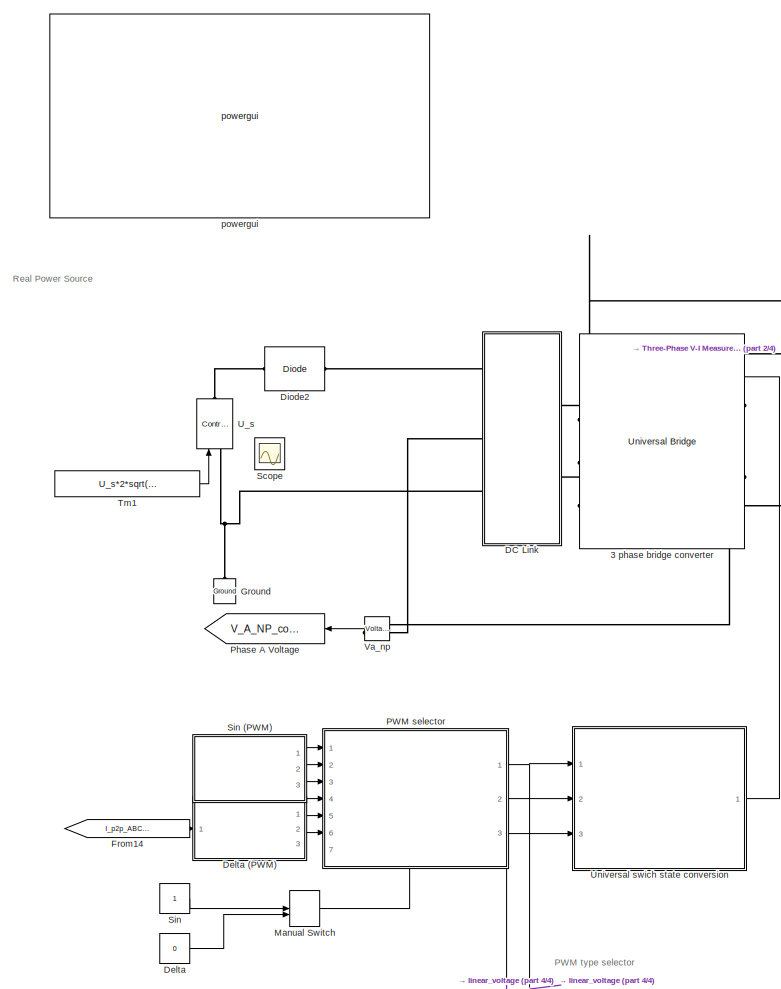
[diagram: root canvas - part 1/4, left side, full height]
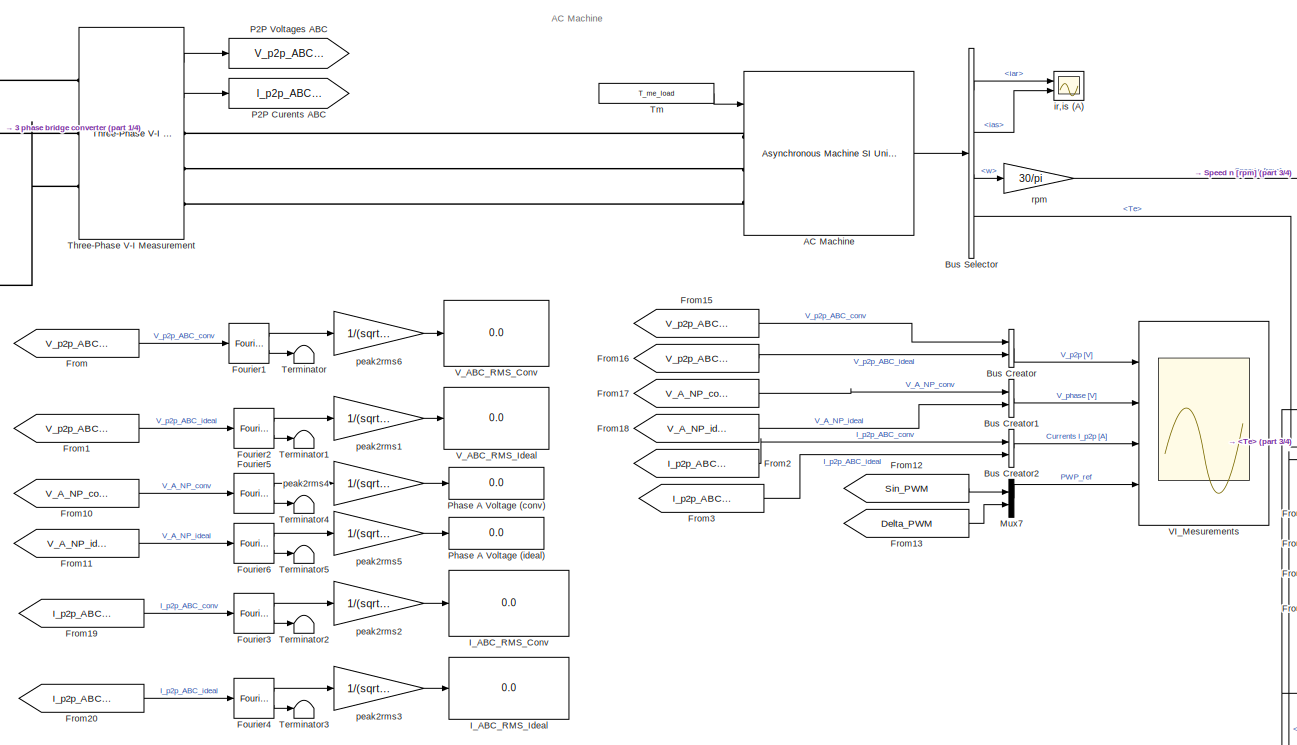
[diagram: root canvas - part 2/4, central region]
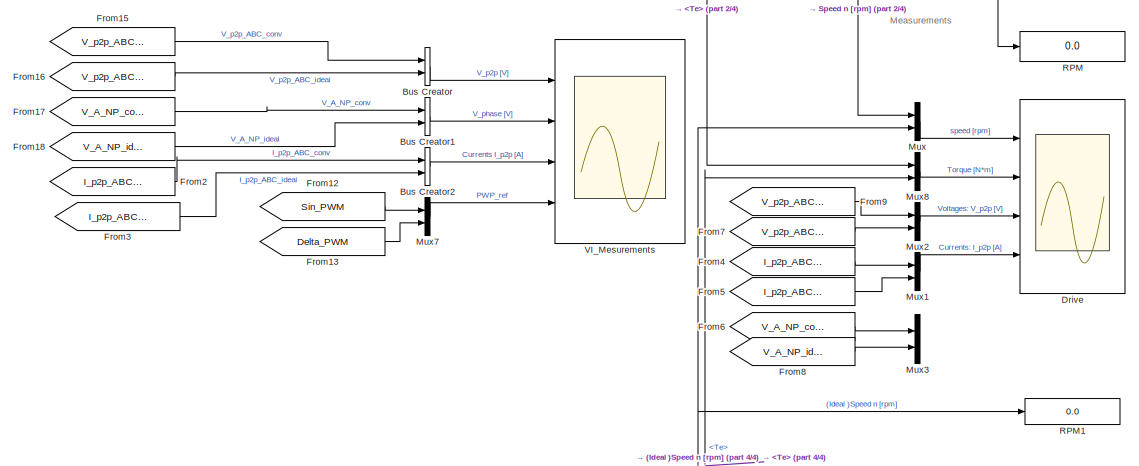
[diagram: root canvas - part 3/4, middle right region]
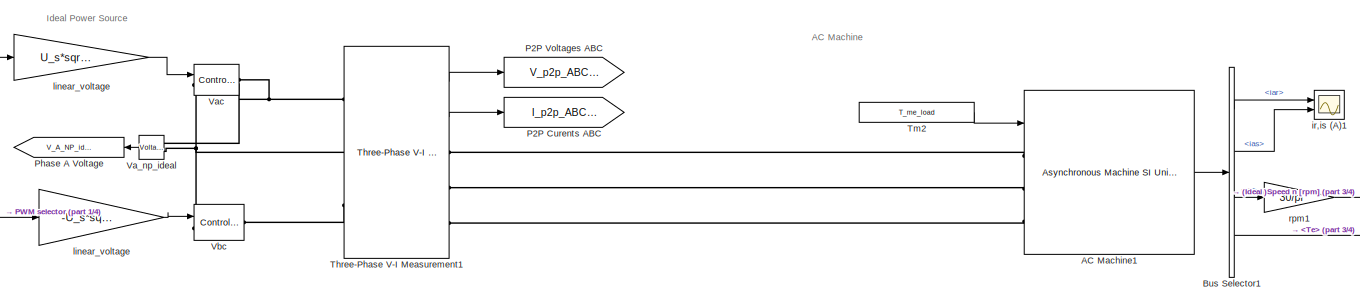
[diagram: root canvas - part 4/4, bottom center region]
MODEL slx_01f4bf0b1620
KIND model
CONFIG AbsTol = auto
CONFIG EnableMultiTasking = on
CONFIG FixedStep = 1e-6
CONFIG MaxStep = 1e-5
CONFIG MinStep = auto
CONFIG RelTol = 1e-5
CONFIG SampleTimeConstraint = Unconstrained
CONFIG SolverName = FixedStepAuto
CONFIG StartTime = 0.0
CONFIG StopTime = 3
BLOCK [Reference] 3 phase bridge converter  REF=spsUniversalBridgeLib/Universal Bridge
  NameLocation = top
  Ports = [1, 0, 0, 0, 0, 3, 2]
  SourceBlock = spsUniversalBridgeLib/Universal Bridge
  SourceProductBaseCode = PS
  SourceType = Universal Bridge
BLOCK [Reference] AC Machine  REF=spsAsynchronousMachineSIUnitsLib/Asynchronous Machine
SI Units
  AttributesFormatString = \n
  Ports = [1, 1, 0, 0, 0, 3]
  SourceBlock = spsAsynchronousMachineSIUnitsLib/Asynchronous Machine\nSI Units
  SourceProductBaseCode = PS
  SourceType = Asynchronous Machine
BLOCK [Reference] AC Machine1  REF=spsAsynchronousMachineSIUnitsLib/Asynchronous Machine
SI Units
  AttributesFormatString = \n
  Ports = [1, 1, 0, 0, 0, 3]
  SourceBlock = spsAsynchronousMachineSIUnitsLib/Asynchronous Machine\nSI Units
  SourceProductBaseCode = PS
  SourceType = Asynchronous Machine
BLOCK [BusCreator] Bus Creator
  DisplayOption = bar
  InheritFromInputs = on
  Inputs = 2
  Ports = [2, 1]
BLOCK [BusCreator] Bus Creator1
  DisplayOption = bar
  InheritFromInputs = on
  Inputs = 2
  Ports = [2, 1]
BLOCK [BusCreator] Bus Creator2
  DisplayOption = bar
  InheritFromInputs = on
  Inputs = 2
  Ports = [2, 1]
BLOCK [BusSelector] Bus Selector
  OutputSignals = iar,ias,w,Te
  Ports = [1, 4]
BLOCK [BusSelector] Bus Selector1
  OutputSignals = iar,ias,w,Te
  Ports = [1, 4]
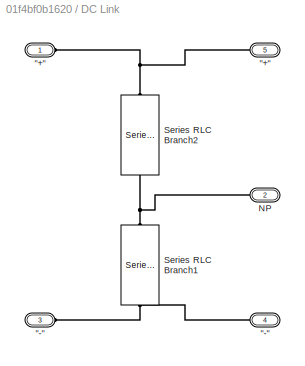
BLOCK [SubSystem] DC Link
  Ports = [0, 0, 0, 0, 0, 3, 2]
  RequestExecContextInheritance = off
BLOCK [PMIOPort] DC Link/"+"
  Side = Left
BLOCK [PMIOPort] DC Link/"+" 
  Port = 5
  Side = Right
BLOCK [PMIOPort] DC Link/"-"
  NameLocation = top
  Port = 3
  Side = Left
BLOCK [PMIOPort] DC Link/"-" 
  Port = 4
  Side = Right
BLOCK [PMIOPort] DC Link/NP
  Port = 2
  Side = Left
BLOCK [Reference] DC Link/Series RLC Branch1  REF=spsSeriesRLCBranchLib/Series RLC Branch
  NameLocation = left
  Ports = [0, 0, 0, 0, 0, 1, 1]
  SourceBlock = spsSeriesRLCBranchLib/Series RLC Branch
  SourceProductBaseCode = PS
  SourceType = Series RLC Branch
BLOCK [Reference] DC Link/Series RLC Branch2  REF=spsSeriesRLCBranchLib/Series RLC Branch
  NameLocation = left
  Ports = [0, 0, 0, 0, 0, 1, 1]
  SourceBlock = spsSeriesRLCBranchLib/Series RLC Branch
  SourceProductBaseCode = PS
  SourceType = Series RLC Branch
BLOCK [Constant] Delta
  Value = 0
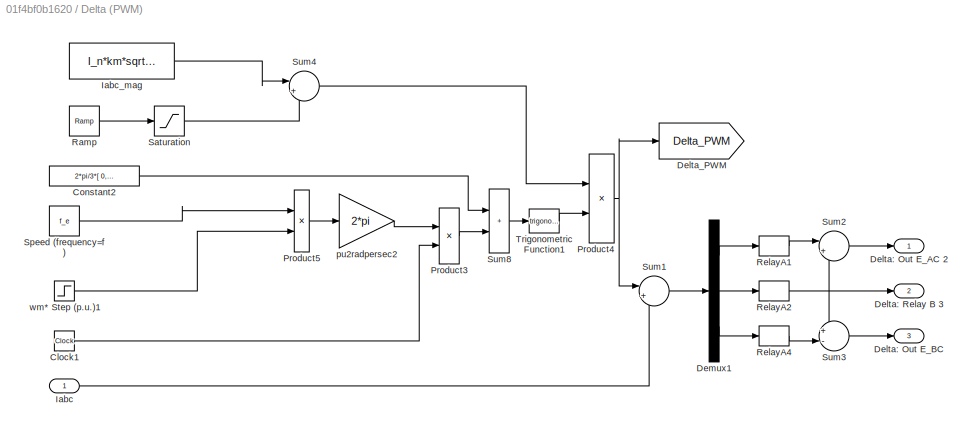
BLOCK [SubSystem] Delta (PWM) 
  Ports = [1, 3]
  RequestExecContextInheritance = off
BLOCK [Clock] Delta (PWM) /Clock1
  NameLocation = top
BLOCK [Constant] Delta (PWM) /Constant2
  NameLocation = top
  Value = 2*pi/3*[ 0,-1,1 ]
BLOCK [Outport] Delta (PWM) /Delta: Out E_AC 2
  VectorParamsAs1DForOutWhenUnconnected = off
BLOCK [Outport] Delta (PWM) /Delta: Out E_BC
  Port = 3
  VectorParamsAs1DForOutWhenUnconnected = off
BLOCK [Outport] Delta (PWM) /Delta: Relay B 3
  Port = 2
  VectorParamsAs1DForOutWhenUnconnected = off
BLOCK [Goto] Delta (PWM) /Delta_PWM
  GotoTag = Delta_PWM
  TagVisibility = global
BLOCK [Demux] Delta (PWM) /Demux1
  DisplayOption = none
  NameLocation = top
  Outputs = 3
  Ports = [1, 3]
BLOCK [Inport] Delta (PWM) /Iabc 
BLOCK [Constant] Delta (PWM) /Iabc_mag
  Value = I_n*km*sqrt(2)
BLOCK [Product] Delta (PWM) /Product3
  InputSameDT = on
  OutDataTypeStr = Inherit: Same as first input
  Ports = [2, 1]
  SaturateOnIntegerOverflow = on
BLOCK [Product] Delta (PWM) /Product4
  InputSameDT = on
  OutDataTypeStr = Inherit: Same as first input
  Ports = [2, 1]
  SaturateOnIntegerOverflow = on
BLOCK [Product] Delta (PWM) /Product5
  InputSameDT = on
  OutDataTypeStr = Inherit: Same as first input
  Ports = [2, 1]
  SaturateOnIntegerOverflow = on
BLOCK [Reference] Delta (PWM) /Ramp  REF=simulink/Sources/Ramp
  Ports = [0, 1]
  SourceBlock = simulink/Sources/Ramp
  SourceProductBaseCode = SL
  SourceType = Ramp
BLOCK [Relay] Delta (PWM) /RelayA1
  OffSwitchValue = -0.1
  OnSwitchValue = 0.1
BLOCK [Relay] Delta (PWM) /RelayA2
  OffSwitchValue = -0.1
  OnSwitchValue = 0.1
BLOCK [Relay] Delta (PWM) /RelayA4
  OffSwitchValue = -0.1
  OnSwitchValue = 0.1
BLOCK [Saturate] Delta (PWM) /Saturation
  LowerLimit = 0
  UpperLimit = T_me_load/T_e_rated*I_n*sqrt(2)
BLOCK [Constant] Delta (PWM) /Speed (frequency=f)
  Value = f_e
BLOCK [Sum] Delta (PWM) /Sum1
  InputSameDT = on
  Inputs = |+-
  OutDataTypeStr = Inherit: Same as first input
  Ports = [2, 1]
  SaturateOnIntegerOverflow = on
BLOCK [Sum] Delta (PWM) /Sum2
  InputSameDT = on
  Inputs = |+-
  OutDataTypeStr = Inherit: Same as first input
  Ports = [2, 1]
  SaturateOnIntegerOverflow = on
BLOCK [Sum] Delta (PWM) /Sum3
  InputSameDT = on
  Inputs = +-|
  OutDataTypeStr = Inherit: Same as first input
  Ports = [2, 1]
  SaturateOnIntegerOverflow = on
BLOCK [Sum] Delta (PWM) /Sum4
  InputSameDT = on
  Inputs = |+-
  OutDataTypeStr = Inherit: Same as first input
  Ports = [2, 1]
  SaturateOnIntegerOverflow = on
BLOCK [Sum] Delta (PWM) /Sum8
  IconShape = rectangular
  InputSameDT = on
  NameLocation = top
  OutDataTypeStr = Inherit: Same as first input
  Ports = [2, 1]
  SaturateOnIntegerOverflow = on
BLOCK [Trigonometry] Delta (PWM) /Trigonometric Function1
  Ports = [1, 1]
BLOCK [Gain] Delta (PWM) /pu2radpersec2
  Gain = 2*pi
  OutDataTypeStr = Inherit: Same as input
  ParamDataTypeStr = Inherit: Same as input
  SaturateOnIntegerOverflow = on
BLOCK [Step] Delta (PWM) /wm* Step (p.u.)1
  After = w_ref
  NameLocation = left
  SampleTime = 0
  Time = 0
BLOCK [Reference] Diode2  REF=spsDiodeLib/Diode
  Ports = [0, 0, 0, 0, 0, 1, 1]
  SourceBlock = spsDiodeLib/Diode
  SourceProductBaseCode = PS
  SourceType = Diode
BLOCK [Scope] Drive
  Floating = off
  NameLocation = top
  NumInputPorts = 4
  Ports = [4]
  ScopeSpecificationString = Simulink.scopes.TimeScopeBlockCfg('CurrentConfiguration', extmgr.ConfigurationSet(extmgr.Configuration('Core','General UI',true,'FigureColor',[1 1 1]),extmgr.Configuration('Core','Source UI',true),extmgr.Configuration('Sources','WiredSimulink',true,'DataLoggingVariableName','ScopeData1','DataLoggingSaveFormat','Array','DataLoggingDecimation','1','DataLoggingDecimateData',true),extmgr.Configuration...<+7477ch>
BLOCK [Reference] Fourier1  REF=spsFourierLib/Fourier
  Ports = [1, 2]
  SourceBlock = spsFourierLib/Fourier
  SourceProductBaseCode = PS
  SourceType = Fourier
BLOCK [Reference] Fourier2  REF=spsFourierLib/Fourier
  Ports = [1, 2]
  SourceBlock = spsFourierLib/Fourier
  SourceProductBaseCode = PS
  SourceType = Fourier
BLOCK [Reference] Fourier3  REF=spsFourierLib/Fourier
  Ports = [1, 2]
  SourceBlock = spsFourierLib/Fourier
  SourceProductBaseCode = PS
  SourceType = Fourier
BLOCK [Reference] Fourier4  REF=spsFourierLib/Fourier
  Ports = [1, 2]
  SourceBlock = spsFourierLib/Fourier
  SourceProductBaseCode = PS
  SourceType = Fourier
BLOCK [Reference] Fourier5  REF=spsFourierLib/Fourier
  Ports = [1, 2]
  SourceBlock = spsFourierLib/Fourier
  SourceProductBaseCode = PS
  SourceType = Fourier
BLOCK [Reference] Fourier6  REF=spsFourierLib/Fourier
  Ports = [1, 2]
  SourceBlock = spsFourierLib/Fourier
  SourceProductBaseCode = PS
  SourceType = Fourier
BLOCK [From] From
  GotoTag = V_p2p_ABC_conv
BLOCK [From] From1
  GotoTag = V_p2p_ABC_ideal
BLOCK [From] From10
  GotoTag = V_A_NP_conv
BLOCK [From] From11
  GotoTag = V_A_NP_ideal
BLOCK [From] From12
  GotoTag = Sin_PWM
  TagVisibility = global
BLOCK [From] From13
  GotoTag = Delta_PWM
  TagVisibility = global
BLOCK [From] From14
  GotoTag = I_p2p_ABC_conv
BLOCK [From] From15
  GotoTag = V_p2p_ABC_conv
BLOCK [From] From16
  GotoTag = V_p2p_ABC_ideal
BLOCK [From] From17
  GotoTag = V_A_NP_conv
BLOCK [From] From18
  GotoTag = V_A_NP_ideal
BLOCK [From] From19
  GotoTag = I_p2p_ABC_conv
BLOCK [From] From2
  GotoTag = I_p2p_ABC_conv
BLOCK [From] From20
  GotoTag = I_p2p_ABC_ideal
BLOCK [From] From3
  GotoTag = I_p2p_ABC_ideal
BLOCK [From] From4
  GotoTag = I_p2p_ABC_ideal
BLOCK [From] From5
  GotoTag = I_p2p_ABC_conv
BLOCK [From] From6
  GotoTag = V_A_NP_conv
BLOCK [From] From7
  GotoTag = V_p2p_ABC_conv
BLOCK [From] From8
  GotoTag = V_A_NP_ideal
BLOCK [From] From9
  GotoTag = V_p2p_ABC_ideal
BLOCK [Reference] Ground  REF=spsGroundLib/Ground
  NameLocation = right
  Ports = [0, 0, 0, 0, 0, 1]
  SourceBlock = spsGroundLib/Ground
  SourceProductBaseCode = PS
  SourceType = Ground
BLOCK [Display] I_ABC_RMS_Conv
  Decimation = 100
  Ports = [1]
BLOCK [Display] I_ABC_RMS_Ideal
  Decimation = 100
  Ports = [1]
BLOCK [ManualSwitch] Manual Switch
BLOCK [Mux] Mux
  DisplayOption = bar
  Inputs = 2
  Ports = [2, 1]
BLOCK [Mux] Mux1
  DisplayOption = bar
  Inputs = 2
  Ports = [2, 1]
BLOCK [Mux] Mux2
  DisplayOption = bar
  Inputs = 2
  Ports = [2, 1]
BLOCK [Mux] Mux3
  DisplayOption = bar
  Inputs = 2
  Ports = [2, 1]
BLOCK [Mux] Mux7
  DisplayOption = bar
  Inputs = 2
  Ports = [2, 1]
BLOCK [Mux] Mux8
  DisplayOption = bar
  Inputs = 2
  Ports = [2, 1]
BLOCK [Goto] P2P Curents ABC  
  GotoTag = I_p2p_ABC_ideal
  NameLocation = right
BLOCK [Goto] P2P Curents ABC   
  GotoTag = I_p2p_ABC_conv
  NameLocation = right
BLOCK [Goto] P2P Voltages ABC
  GotoTag = V_p2p_ABC_ideal
  NameLocation = right
BLOCK [Goto] P2P Voltages ABC 
  GotoTag = V_p2p_ABC_conv
  NameLocation = right
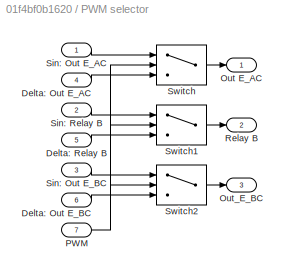
BLOCK [SubSystem] PWM selector
  NameLocation = top
  PortSchema = {"entries":[{"content":{"sides":[{"content":{"connectorIds":["In1","In2","In3","In4","In5","In6"]},"type":"ConnectorPlacement.EquallySpacedRectSide","uuid":"d8825297-29c5-47ea-8460-276057c08024"},{"content":{"connectorIds":["Out1","Out2","Out3"],"side":"RIGHT"},"type":"ConnectorPlacement.EquallySpacedRectSide","uuid":"df0a2572-9195-4f57-b13e-7b5fffdd47ce"},{"content":{"connectorIds":[],"side":"TOP...<+577ch>
  Ports = [7, 3]
  RequestExecContextInheritance = off
BLOCK [Inport] PWM selector/Delta: Out E_AC
  NameLocation = left
  Port = 4
BLOCK [Inport] PWM selector/Delta: Out E_BC
  NameLocation = left
  Port = 6
BLOCK [Inport] PWM selector/Delta: Relay B
  NameLocation = left
  Port = 5
BLOCK [Outport] PWM selector/Out E_AC
  NameLocation = right
  VectorParamsAs1DForOutWhenUnconnected = off
BLOCK [Outport] PWM selector/Out_E_BC
  NameLocation = right
  Port = 3
  VectorParamsAs1DForOutWhenUnconnected = off
BLOCK [Inport] PWM selector/PWM
  Port = 7
BLOCK [Outport] PWM selector/Relay B
  NameLocation = right
  Port = 2
  VectorParamsAs1DForOutWhenUnconnected = off
BLOCK [Inport] PWM selector/Sin: Out E_AC
  NameLocation = left
BLOCK [Inport] PWM selector/Sin: Out E_BC
  NameLocation = left
  Port = 3
BLOCK [Inport] PWM selector/Sin: Relay B
  NameLocation = left
  Port = 2
BLOCK [Switch] PWM selector/Switch
  Criteria = u2 > Threshold
  InputSameDT = off
  SaturateOnIntegerOverflow = off
BLOCK [Switch] PWM selector/Switch1
  Criteria = u2 > Threshold
  InputSameDT = off
  SaturateOnIntegerOverflow = off
BLOCK [Switch] PWM selector/Switch2
  Criteria = u2 > Threshold
  InputSameDT = off
  SaturateOnIntegerOverflow = off
BLOCK [Goto] Phase A Voltage
  GotoTag = V_A_NP_conv
  NameLocation = left
BLOCK [Display] Phase A Voltage (conv)
  Decimation = 100
  Ports = [1]
BLOCK [Display] Phase A Voltage (ideal)
  Decimation = 100
  Ports = [1]
BLOCK [Display] RPM
  Decimation = 100
  Ports = [1]
BLOCK [Display] RPM1
  Decimation = 100
  Ports = [1]
BLOCK [Scope] Scope
  Floating = off
  IOType = viewer
  NumInputPorts = 1
  Ports = []
  ScopeSpecificationString = Simulink.scopes.TimeScopeBlockCfg('CurrentConfiguration', extmgr.ConfigurationSet(extmgr.Configuration('Core','General UI',true),extmgr.Configuration('Core','Source UI',true),extmgr.Configuration('Sources','WiredSimulink',true,'DataLoggingVariableName','ScopeData4','DataLoggingSaveFormat','StructureWithTime','DataLoggingDecimation','1','DataLoggingDecimateData',true),extmgr.Configuration('Visuals'...<+1689ch>
BLOCK [Constant] Sin
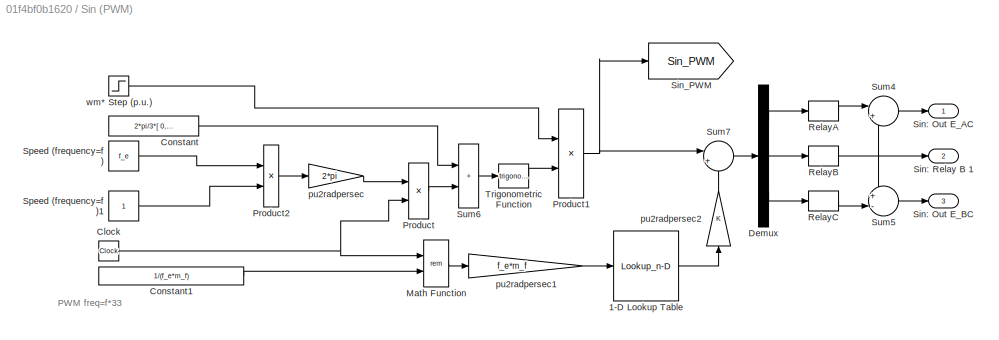
BLOCK [SubSystem] Sin (PWM)
  NameLocation = top
  Ports = [0, 3]
  RequestExecContextInheritance = off
BLOCK [Lookup_n-D] Sin (PWM)/1-D Lookup Table
  BreakpointsForDimension1 = [0 0.25  0.75  1]
  InputPortMap = u0
  InternalRulePriority = Speed
  NumberOfTableDimensions = 1
  Ports = [1, 1]
  RndMeth = Simplest
  Table = [0  1  -1  0]
BLOCK [Clock] Sin (PWM)/Clock
  NameLocation = top
BLOCK [Constant] Sin (PWM)/Constant
  NameLocation = top
  Value = 2*pi/3*[ 0,-1,1 ]
BLOCK [Constant] Sin (PWM)/Constant1
  NameLocation = top
  Value = 1/(f_e*m_f)
BLOCK [Demux] Sin (PWM)/Demux
  DisplayOption = none
  NameLocation = top
  Outputs = 3
  Ports = [1, 3]
BLOCK [Math] Sin (PWM)/Math Function
  NameLocation = top
  Operator = rem
  Ports = [2, 1]
  SignedPower = on
BLOCK [Product] Sin (PWM)/Product
  InputSameDT = on
  OutDataTypeStr = Inherit: Same as first input
  Ports = [2, 1]
  SaturateOnIntegerOverflow = on
BLOCK [Product] Sin (PWM)/Product1
  InputSameDT = on
  OutDataTypeStr = Inherit: Same as first input
  Ports = [2, 1]
  SaturateOnIntegerOverflow = on
BLOCK [Product] Sin (PWM)/Product2
  InputSameDT = on
  OutDataTypeStr = Inherit: Same as first input
  Ports = [2, 1]
  SaturateOnIntegerOverflow = on
BLOCK [Relay] Sin (PWM)/RelayA
  OffOutputValue = -1
  OffSwitchValue = 0
  OnSwitchValue = 0
BLOCK [Relay] Sin (PWM)/RelayB
  OffOutputValue = -1
  OffSwitchValue = 0
  OnSwitchValue = 0
BLOCK [Relay] Sin (PWM)/RelayC
  OffOutputValue = -1
  OffSwitchValue = 0
  OnSwitchValue = 0
BLOCK [Outport] Sin (PWM)/Sin: Out E_AC 
  VectorParamsAs1DForOutWhenUnconnected = off
BLOCK [Outport] Sin (PWM)/Sin: Out E_BC
  Port = 3
  VectorParamsAs1DForOutWhenUnconnected = off
BLOCK [Outport] Sin (PWM)/Sin: Relay B 1
  Port = 2
  VectorParamsAs1DForOutWhenUnconnected = off
BLOCK [Goto] Sin (PWM)/Sin_PWM
  GotoTag = Sin_PWM
  TagVisibility = global
BLOCK [Constant] Sin (PWM)/Speed (frequency=f)
  Value = f_e
BLOCK [Constant] Sin (PWM)/Speed (frequency=f)1
BLOCK [Sum] Sin (PWM)/Sum4
  InputSameDT = on
  Inputs = |+-
  OutDataTypeStr = Inherit: Same as first input
  Ports = [2, 1]
  SaturateOnIntegerOverflow = on
BLOCK [Sum] Sin (PWM)/Sum5
  InputSameDT = on
  Inputs = +-|
  OutDataTypeStr = Inherit: Same as first input
  Ports = [2, 1]
  SaturateOnIntegerOverflow = on
BLOCK [Sum] Sin (PWM)/Sum6
  IconShape = rectangular
  InputSameDT = on
  NameLocation = top
  OutDataTypeStr = Inherit: Same as first input
  Ports = [2, 1]
  SaturateOnIntegerOverflow = on
BLOCK [Sum] Sin (PWM)/Sum7
  InputSameDT = on
  Inputs = |+-
  OutDataTypeStr = Inherit: Same as first input
  Ports = [2, 1]
  SaturateOnIntegerOverflow = on
BLOCK [Trigonometry] Sin (PWM)/Trigonometric Function
  Ports = [1, 1]
BLOCK [Gain] Sin (PWM)/pu2radpersec
  Gain = 2*pi
  OutDataTypeStr = Inherit: Same as input
  ParamDataTypeStr = Inherit: Same as input
  SaturateOnIntegerOverflow = on
BLOCK [Gain] Sin (PWM)/pu2radpersec1
  Gain = f_e*m_f
  OutDataTypeStr = Inherit: Same as input
  ParamDataTypeStr = Inherit: Same as input
  SaturateOnIntegerOverflow = on
BLOCK [Gain] Sin (PWM)/pu2radpersec2
  NameLocation = right
  OutDataTypeStr = Inherit: Same as input
  ParamDataTypeStr = Inherit: Same as input
  SaturateOnIntegerOverflow = on
BLOCK [Step] Sin (PWM)/wm* Step (p.u.)
  After = w_ref
  NameLocation = top
  SampleTime = 0
  Time = 0
BLOCK [Terminator] Terminator
BLOCK [Terminator] Terminator1
BLOCK [Terminator] Terminator2
BLOCK [Terminator] Terminator3
BLOCK [Terminator] Terminator4
BLOCK [Terminator] Terminator5
BLOCK [Reference] Three-Phase V-I Measurement  REF=spsThreePhaseVIMeasurementLib/Three-Phase
V-I Measurement
  Ports = [0, 2, 0, 0, 0, 3, 3]
  SourceBlock = spsThreePhaseVIMeasurementLib/Three-Phase\nV-I Measurement
  SourceProductBaseCode = PS
  SourceType = Three-Phase VI Measurement
BLOCK [Reference] Three-Phase V-I Measurement1  REF=spsThreePhaseVIMeasurementLib/Three-Phase
V-I Measurement
  Ports = [0, 2, 0, 0, 0, 3, 3]
  SourceBlock = spsThreePhaseVIMeasurementLib/Three-Phase\nV-I Measurement
  SourceProductBaseCode = PS
  SourceType = Three-Phase VI Measurement
BLOCK [Constant] Tm
  Value = T_me_load
BLOCK [Constant] Tm1
  Value = U_s*2*sqrt(2)
  VectorParams1D = off
BLOCK [Constant] Tm2
  Value = T_me_load
BLOCK [Reference] U_s  REF=spsControlledVoltageSourceLib/Controlled Voltage Source
  AttributesFormatString = \n
  Description = source block
  NameLocation = right
  Ports = [1, 0, 0, 0, 0, 1, 1]
  SourceBlock = spsControlledVoltageSourceLib/Controlled Voltage Source
  SourceProductBaseCode = PS
  SourceType = Controlled Voltage Source
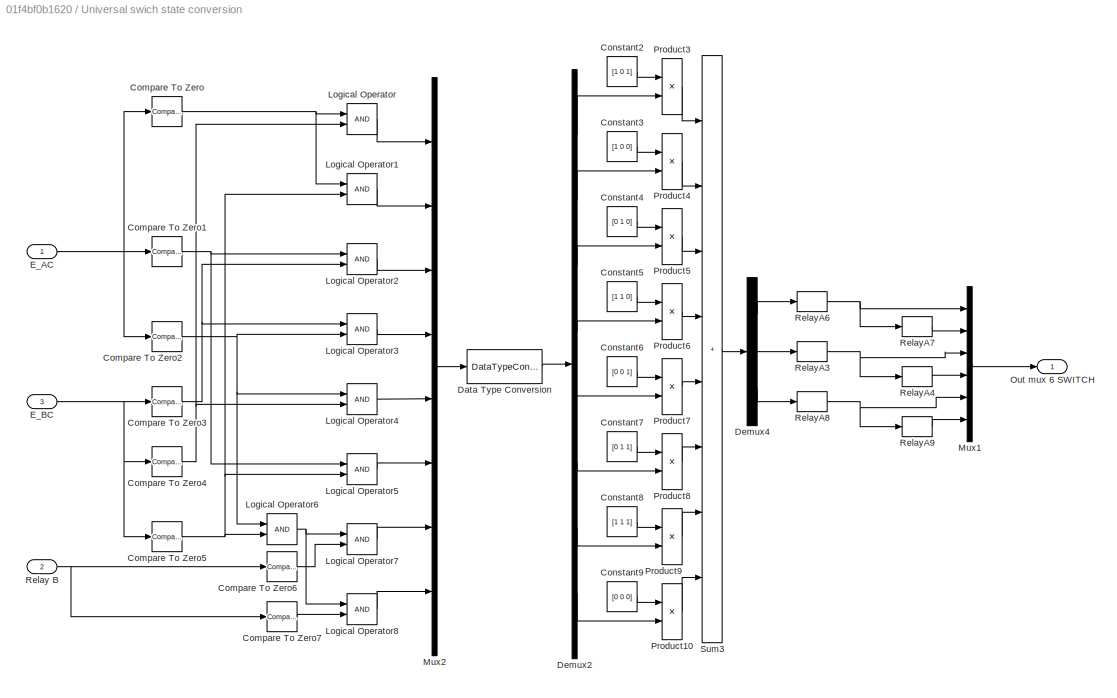
BLOCK [SubSystem] Universal swich state conversion
  Ports = [3, 1]
  RequestExecContextInheritance = off
BLOCK [Reference] Universal swich state conversion/Compare To Zero  REF=simulink/Logic and Bit
Operations/Compare
To Zero
  Ports = [1, 1]
  SourceBlock = simulink/Logic and Bit\nOperations/Compare\nTo Zero
  SourceProductBaseCode = SL
  SourceType = Compare To Zero
BLOCK [Reference] Universal swich state conversion/Compare To Zero1  REF=simulink/Logic and Bit
Operations/Compare
To Zero
  Ports = [1, 1]
  SourceBlock = simulink/Logic and Bit\nOperations/Compare\nTo Zero
  SourceProductBaseCode = SL
  SourceType = Compare To Zero
BLOCK [Reference] Universal swich state conversion/Compare To Zero2  REF=simulink/Logic and Bit
Operations/Compare
To Zero
  Ports = [1, 1]
  SourceBlock = simulink/Logic and Bit\nOperations/Compare\nTo Zero
  SourceProductBaseCode = SL
  SourceType = Compare To Zero
BLOCK [Reference] Universal swich state conversion/Compare To Zero3  REF=simulink/Logic and Bit
Operations/Compare
To Zero
  Ports = [1, 1]
  SourceBlock = simulink/Logic and Bit\nOperations/Compare\nTo Zero
  SourceProductBaseCode = SL
  SourceType = Compare To Zero
BLOCK [Reference] Universal swich state conversion/Compare To Zero4  REF=simulink/Logic and Bit
Operations/Compare
To Zero
  Ports = [1, 1]
  SourceBlock = simulink/Logic and Bit\nOperations/Compare\nTo Zero
  SourceProductBaseCode = SL
  SourceType = Compare To Zero
BLOCK [Reference] Universal swich state conversion/Compare To Zero5  REF=simulink/Logic and Bit
Operations/Compare
To Zero
  Ports = [1, 1]
  SourceBlock = simulink/Logic and Bit\nOperations/Compare\nTo Zero
  SourceProductBaseCode = SL
  SourceType = Compare To Zero
BLOCK [Reference] Universal swich state conversion/Compare To Zero6  REF=simulink/Logic and Bit
Operations/Compare
To Zero
  Ports = [1, 1]
  SourceBlock = simulink/Logic and Bit\nOperations/Compare\nTo Zero
  SourceProductBaseCode = SL
  SourceType = Compare To Zero
BLOCK [Reference] Universal swich state conversion/Compare To Zero7  REF=simulink/Logic and Bit
Operations/Compare
To Zero
  Ports = [1, 1]
  SourceBlock = simulink/Logic and Bit\nOperations/Compare\nTo Zero
  SourceProductBaseCode = SL
  SourceType = Compare To Zero
BLOCK [Constant] Universal swich state conversion/Constant2
  Value = [1 0 1]
BLOCK [Constant] Universal swich state conversion/Constant3
  Value = [1 0 0]
BLOCK [Constant] Universal swich state conversion/Constant4
  Value = [0 1  0]
BLOCK [Constant] Universal swich state conversion/Constant5
  Value = [1 1 0]
BLOCK [Constant] Universal swich state conversion/Constant6
  Value = [0 0 1]
BLOCK [Constant] Universal swich state conversion/Constant7
  Value = [0 1 1]
BLOCK [Constant] Universal swich state conversion/Constant8
  Value = [1 1 1]
BLOCK [Constant] Universal swich state conversion/Constant9
  Value = [0 0 0]
BLOCK [DataTypeConversion] Universal swich state conversion/Data Type Conversion
  OutDataTypeStr = double
  RndMeth = Floor
  SaturateOnIntegerOverflow = off
BLOCK [Demux] Universal swich state conversion/Demux2
  DisplayOption = none
  NameLocation = top
  Outputs = 8
  Ports = [1, 8]
BLOCK [Demux] Universal swich state conversion/Demux4
  DisplayOption = none
  NameLocation = top
  Outputs = 3
  Ports = [1, 3]
BLOCK [Inport] Universal swich state conversion/E_AC 
BLOCK [Inport] Universal swich state conversion/E_BC
  Port = 3
BLOCK [Logic] Universal swich state conversion/Logical Operator
  AllPortsSameDT = off
  OutDataTypeStr = boolean
  Ports = [2, 1]
BLOCK [Logic] Universal swich state conversion/Logical Operator1
  AllPortsSameDT = off
  OutDataTypeStr = boolean
  Ports = [2, 1]
BLOCK [Logic] Universal swich state conversion/Logical Operator2
  AllPortsSameDT = off
  OutDataTypeStr = boolean
  Ports = [2, 1]
BLOCK [Logic] Universal swich state conversion/Logical Operator3
  AllPortsSameDT = off
  OutDataTypeStr = boolean
  Ports = [2, 1]
BLOCK [Logic] Universal swich state conversion/Logical Operator4
  AllPortsSameDT = off
  OutDataTypeStr = boolean
  Ports = [2, 1]
BLOCK [Logic] Universal swich state conversion/Logical Operator5
  AllPortsSameDT = off
  OutDataTypeStr = boolean
  Ports = [2, 1]
BLOCK [Logic] Universal swich state conversion/Logical Operator6
  AllPortsSameDT = off
  OutDataTypeStr = boolean
  Ports = [2, 1]
BLOCK [Logic] Universal swich state conversion/Logical Operator7
  AllPortsSameDT = off
  OutDataTypeStr = boolean
  Ports = [2, 1]
BLOCK [Logic] Universal swich state conversion/Logical Operator8
  AllPortsSameDT = off
  OutDataTypeStr = boolean
  Ports = [2, 1]
BLOCK [Mux] Universal swich state conversion/Mux1
  DisplayOption = bar
  Inputs = 6
  Ports = [6, 1]
BLOCK [Mux] Universal swich state conversion/Mux2
  DisplayOption = bar
  Inputs = 8
  Ports = [8, 1]
BLOCK [Outport] Universal swich state conversion/Out mux 6 SWITCH
  VectorParamsAs1DForOutWhenUnconnected = off
BLOCK [Product] Universal swich state conversion/Product10
  InputSameDT = on
  OutDataTypeStr = Inherit: Same as first input
  Ports = [2, 1]
  SaturateOnIntegerOverflow = on
BLOCK [Product] Universal swich state conversion/Product3
  InputSameDT = on
  OutDataTypeStr = Inherit: Same as first input
  Ports = [2, 1]
  SaturateOnIntegerOverflow = on
BLOCK [Product] Universal swich state conversion/Product4
  InputSameDT = on
  OutDataTypeStr = Inherit: Same as first input
  Ports = [2, 1]
  SaturateOnIntegerOverflow = on
BLOCK [Product] Universal swich state conversion/Product5
  InputSameDT = on
  OutDataTypeStr = Inherit: Same as first input
  Ports = [2, 1]
  SaturateOnIntegerOverflow = on
BLOCK [Product] Universal swich state conversion/Product6
  InputSameDT = on
  OutDataTypeStr = Inherit: Same as first input
  Ports = [2, 1]
  SaturateOnIntegerOverflow = on
BLOCK [Product] Universal swich state conversion/Product7
  InputSameDT = on
  OutDataTypeStr = Inherit: Same as first input
  Ports = [2, 1]
  SaturateOnIntegerOverflow = on
BLOCK [Product] Universal swich state conversion/Product8
  InputSameDT = on
  OutDataTypeStr = Inherit: Same as first input
  Ports = [2, 1]
  SaturateOnIntegerOverflow = on
BLOCK [Product] Universal swich state conversion/Product9
  InputSameDT = on
  OutDataTypeStr = Inherit: Same as first input
  Ports = [2, 1]
  SaturateOnIntegerOverflow = on
BLOCK [Inport] Universal swich state conversion/Relay B 
  Port = 2
BLOCK [Relay] Universal swich state conversion/RelayA3
  OffSwitchValue = 0.01
  OnSwitchValue = 0.02
BLOCK [Relay] Universal swich state conversion/RelayA4
  OffOutputValue = 1
  OffSwitchValue = 0.01
  OnOutputValue = 0
  OnSwitchValue = 0.02
BLOCK [Relay] Universal swich state conversion/RelayA6
  OffSwitchValue = 0.01
  OnSwitchValue = 0.02
BLOCK [Relay] Universal swich state conversion/RelayA7
  OffOutputValue = 1
  OffSwitchValue = 0.01
  OnOutputValue = 0
  OnSwitchValue = 0.02
BLOCK [Relay] Universal swich state conversion/RelayA8
  OffSwitchValue = 0.01
  OnSwitchValue = 0.02
BLOCK [Relay] Universal swich state conversion/RelayA9
  OffOutputValue = 1
  OffSwitchValue = 0.01
  OnOutputValue = 0
  OnSwitchValue = 0.02
BLOCK [Sum] Universal swich state conversion/Sum3
  IconShape = rectangular
  InputSameDT = on
  Inputs = ++++++++
  NameLocation = top
  OutDataTypeStr = Inherit: Same as first input
  Ports = [8, 1]
  SaturateOnIntegerOverflow = on
BLOCK [Scope] VI_Mesurements
  Floating = off
  NameLocation = top
  NumInputPorts = 4
  Ports = [4]
  ScopeSpecificationString = Simulink.scopes.TimeScopeBlockCfg('CurrentConfiguration', extmgr.ConfigurationSet(extmgr.Configuration('Core','General UI',true,'FigureColor',[1 1 1]),extmgr.Configuration('Core','Source UI',true),extmgr.Configuration('Sources','WiredSimulink',true,'DataLoggingVariableName','VI_mesurements','DataLoggingSaveFormat','StructureWithTime','DataLoggingDecimation','1','DataLoggingDecimateData',true,'Data...<+7447ch>
BLOCK [Display] V_ABC_RMS_Conv
  Decimation = 100
  Ports = [1]
BLOCK [Display] V_ABC_RMS_Ideal
  Decimation = 100
  Ports = [1]
BLOCK [Reference] Va_np  REF=spsVoltageMeasurementLib/Voltage Measurement
  AttributesFormatString = \n
  Ports = [0, 1, 0, 0, 0, 2]
  SourceBlock = spsVoltageMeasurementLib/Voltage Measurement
  SourceProductBaseCode = PS
  SourceType = Voltage Measurement
  Tag = PoWeRsYsTeMmEaSuReMeNt
BLOCK [Reference] Va_np_ideal  REF=spsVoltageMeasurementLib/Voltage Measurement
  AttributesFormatString = \n
  Ports = [0, 1, 0, 0, 0, 2]
  SourceBlock = spsVoltageMeasurementLib/Voltage Measurement
  SourceProductBaseCode = PS
  SourceType = Voltage Measurement
  Tag = PoWeRsYsTeMmEaSuReMeNt
BLOCK [Reference] Vac  REF=spsControlledVoltageSourceLib/Controlled Voltage Source
  AttributesFormatString = \n
  Description = source block
  Ports = [1, 0, 0, 0, 0, 1, 1]
  SourceBlock = spsControlledVoltageSourceLib/Controlled Voltage Source
  SourceProductBaseCode = PS
  SourceType = Controlled Voltage Source
BLOCK [Reference] Vbc   REF=spsControlledVoltageSourceLib/Controlled Voltage Source
  AttributesFormatString = \n
  Description = source block
  Ports = [1, 0, 0, 0, 0, 1, 1]
  SourceBlock = spsControlledVoltageSourceLib/Controlled Voltage Source
  SourceProductBaseCode = PS
  SourceType = Controlled Voltage Source
BLOCK [Scope] ir,is (A)
  Floating = off
  NameLocation = top
  NumInputPorts = 2
  Ports = [2]
  ScopeSpecificationString = Simulink.scopes.TimeScopeBlockCfg('CurrentConfiguration', extmgr.ConfigurationSet(extmgr.Configuration('Core','General UI',true),extmgr.Configuration('Core','Source UI',true),extmgr.Configuration('Sources','WiredSimulink',true,'DataLoggingVariableName','ScopeData3','DataLoggingSaveFormat','Array','DataLoggingDecimation','1','DataLoggingDecimateData',true),extmgr.Configuration('Visuals','Time Domai...<+2406ch>
BLOCK [Scope] ir,is (A)1
  Floating = off
  NameLocation = top
  NumInputPorts = 2
  Ports = [2]
  ScopeSpecificationString = Simulink.scopes.TimeScopeBlockCfg('CurrentConfiguration', extmgr.ConfigurationSet(extmgr.Configuration('Core','General UI',true),extmgr.Configuration('Core','Source UI',true),extmgr.Configuration('Sources','WiredSimulink',true,'DataLoggingVariableName','ScopeData2','DataLoggingSaveFormat','Array','DataLoggingDecimation','1','DataLoggingDecimateData',true),extmgr.Configuration('Visuals','Time Domai...<+2406ch>
BLOCK [Gain] linear_voltage
  Gain = U_s*sqrt(2)
  OutDataTypeStr = Inherit: Same as input
  ParamDataTypeStr = Inherit: Same as input
  SaturateOnIntegerOverflow = on
BLOCK [Gain] linear_voltage 
  Gain = -U_s*sqrt(2)
  NameLocation = top
  OutDataTypeStr = Inherit: Same as input
  ParamDataTypeStr = Inherit: Same as input
  SaturateOnIntegerOverflow = on
BLOCK [Gain] peak2rms1
  Gain = 1/(sqrt(2))
  NameLocation = top
  OutDataTypeStr = Inherit: Same as input
  ParamDataTypeStr = Inherit: Same as input
  SaturateOnIntegerOverflow = on
BLOCK [Gain] peak2rms2
  Gain = 1/(sqrt(2))
  NameLocation = top
  OutDataTypeStr = Inherit: Same as input
  ParamDataTypeStr = Inherit: Same as input
  SaturateOnIntegerOverflow = on
BLOCK [Gain] peak2rms3
  Gain = 1/(sqrt(2))
  NameLocation = top
  OutDataTypeStr = Inherit: Same as input
  ParamDataTypeStr = Inherit: Same as input
  SaturateOnIntegerOverflow = on
BLOCK [Gain] peak2rms4
  Gain = 1/(sqrt(2))
  NameLocation = top
  OutDataTypeStr = Inherit: Same as input
  ParamDataTypeStr = Inherit: Same as input
  SaturateOnIntegerOverflow = on
BLOCK [Gain] peak2rms5
  Gain = 1/(sqrt(6))
  NameLocation = top
  OutDataTypeStr = Inherit: Same as input
  ParamDataTypeStr = Inherit: Same as input
  SaturateOnIntegerOverflow = on
BLOCK [Gain] peak2rms6
  Gain = 1/(sqrt(2))
  NameLocation = top
  OutDataTypeStr = Inherit: Same as input
  ParamDataTypeStr = Inherit: Same as input
  SaturateOnIntegerOverflow = on
BLOCK [Reference] powergui  REF=spspowerguiLib/powergui
  Ports = []
  SourceBlock = spspowerguiLib/powergui
  SourceProductBaseCode = PS
  SourceType = PSB option menu block
BLOCK [Gain] rpm
  Gain = 30/pi
  OutDataTypeStr = Inherit: Same as input
  ParamDataTypeStr = Inherit: Same as input
  SaturateOnIntegerOverflow = on
BLOCK [Gain] rpm1
  Gain = 30/pi
  OutDataTypeStr = Inherit: Same as input
  ParamDataTypeStr = Inherit: Same as input
  SaturateOnIntegerOverflow = on
ANNOTATION (root): AC Machine
ANNOTATION (root): Ideal Power Source
ANNOTATION (root): PWM type selector
ANNOTATION (root): Real Power Source
ANNOTATION (root): Measurements
ANNOTATION Sin (PWM): PWM freq=f*33
LINE AC Machine1:1 -> Bus Selector1:1
LINE AC Machine:1 -> Bus Selector:1
LINE Bus Creator1:1 -> VI_Mesurements:2
LINE Bus Creator2:1 -> VI_Mesurements:3
LINE Bus Creator:1 -> VI_Mesurements:1
LINE Bus Selector1:1 -> ir,is (A)1:1
LINE Bus Selector1:2 -> ir,is (A)1:2
LINE Bus Selector1:3 -> rpm1:1
LINE Bus Selector1:4 -> Mux8:2
LINE Bus Selector:1 -> ir,is (A):1
LINE Bus Selector:2 -> ir,is (A):2
LINE Bus Selector:3 -> rpm:1
LINE Bus Selector:4 -> Mux8:1
LINE Delta (PWM) /Clock1:1 -> Delta (PWM) /Product3:2
LINE Delta (PWM) /Constant2:1 -> Delta (PWM) /Sum8:1
LINE Delta (PWM) /Demux1:1 -> Delta (PWM) /RelayA1:1
LINE Delta (PWM) /Demux1:2 -> Delta (PWM) /RelayA2:1
LINE Delta (PWM) /Demux1:3 -> Delta (PWM) /RelayA4:1
LINE Delta (PWM) /Iabc :1 -> Delta (PWM) /Sum1:2
LINE Delta (PWM) /Iabc_mag:1 -> Delta (PWM) /Sum4:1
LINE Delta (PWM) /Product3:1 -> Delta (PWM) /Sum8:2
NET Delta (PWM) /Product4:1 -> Delta (PWM) /Delta_PWM:1, Delta (PWM) /Sum1:1
LINE Delta (PWM) /Product5:1 -> Delta (PWM) /pu2radpersec2:1
LINE Delta (PWM) /Ramp:1 -> Delta (PWM) /Saturation:1
LINE Delta (PWM) /RelayA1:1 -> Delta (PWM) /Sum2:1
NET Delta (PWM) /RelayA2:1 -> Delta (PWM) /Delta: Relay B 3:1, Delta (PWM) /Sum2:2, Delta (PWM) /Sum3:1
LINE Delta (PWM) /RelayA4:1 -> Delta (PWM) /Sum3:2
LINE Delta (PWM) /Saturation:1 -> Delta (PWM) /Sum4:2
LINE Delta (PWM) /Speed (frequency=f):1 -> Delta (PWM) /Product5:1
LINE Delta (PWM) /Sum1:1 -> Delta (PWM) /Demux1:1
LINE Delta (PWM) /Sum2:1 -> Delta (PWM) /Delta: Out E_AC 2:1
LINE Delta (PWM) /Sum3:1 -> Delta (PWM) /Delta: Out E_BC:1
LINE Delta (PWM) /Sum4:1 -> Delta (PWM) /Product4:1
LINE Delta (PWM) /Sum8:1 -> Delta (PWM) /Trigonometric Function1:1
LINE Delta (PWM) /Trigonometric Function1:1 -> Delta (PWM) /Product4:2
LINE Delta (PWM) /pu2radpersec2:1 -> Delta (PWM) /Product3:1
LINE Delta (PWM) /wm* Step (p.u.)1:1 -> Delta (PWM) /Product5:2
LINE Delta (PWM) :1 -> PWM selector:4
LINE Delta (PWM) :2 -> PWM selector:5
LINE Delta (PWM) :3 -> PWM selector:6
LINE Delta:1 -> Manual Switch:2
LINE Fourier1:1 -> peak2rms6:1
LINE Fourier1:2 -> Terminator:1
LINE Fourier2:1 -> peak2rms1:1
LINE Fourier2:2 -> Terminator1:1
LINE Fourier3:1 -> peak2rms2:1
LINE Fourier3:2 -> Terminator2:1
LINE Fourier4:1 -> peak2rms3:1
LINE Fourier4:2 -> Terminator3:1
LINE Fourier5:1 -> peak2rms4:1
LINE Fourier5:2 -> Terminator4:1
LINE Fourier6:1 -> peak2rms5:1
LINE Fourier6:2 -> Terminator5:1
LINE From10:1 -> Fourier5:1
LINE From11:1 -> Fourier6:1
LINE From12:1 -> Mux7:1
LINE From13:1 -> Mux7:2
LINE From14:1 -> Delta (PWM) :1
LINE From15:1 -> Bus Creator:1
LINE From16:1 -> Bus Creator:2
LINE From17:1 -> Bus Creator1:1
LINE From18:1 -> Bus Creator1:2
LINE From19:1 -> Fourier3:1
LINE From1:1 -> Fourier2:1
LINE From20:1 -> Fourier4:1
LINE From2:1 -> Bus Creator2:1
LINE From3:1 -> Bus Creator2:2
LINE From4:1 -> Mux1:1
LINE From5:1 -> Mux1:2
LINE From6:1 -> Mux3:1
LINE From7:1 -> Mux2:2
LINE From8:1 -> Mux3:2
LINE From9:1 -> Mux2:1
LINE From:1 -> Fourier1:1
LINE Manual Switch:1 -> PWM selector:7
LINE Mux1:1 -> Drive:4
LINE Mux2:1 -> Drive:3
LINE Mux7:1 -> VI_Mesurements:4
LINE Mux8:1 -> Drive:2
LINE Mux:1 -> Drive:1
LINE PWM selector/Delta: Out E_AC:1 -> PWM selector/Switch:3
LINE PWM selector/Delta: Out E_BC:1 -> PWM selector/Switch2:3
LINE PWM selector/Delta: Relay B:1 -> PWM selector/Switch1:3
NET PWM selector/PWM:1 -> PWM selector/Switch1:2, PWM selector/Switch2:2, PWM selector/Switch:2
LINE PWM selector/Sin: Out E_AC:1 -> PWM selector/Switch:1
LINE PWM selector/Sin: Out E_BC:1 -> PWM selector/Switch2:1
LINE PWM selector/Sin: Relay B:1 -> PWM selector/Switch1:1
LINE PWM selector/Switch1:1 -> PWM selector/Relay B:1
LINE PWM selector/Switch2:1 -> PWM selector/Out_E_BC:1
LINE PWM selector/Switch:1 -> PWM selector/Out E_AC:1
NET PWM selector:1 -> Universal swich state conversion:1, linear_voltage:1
LINE PWM selector:2 -> Universal swich state conversion:2
NET PWM selector:3 -> Universal swich state conversion:3, linear_voltage :1
LINE Sin (PWM)/1-D Lookup Table:1 -> Sin (PWM)/pu2radpersec2:1
NET Sin (PWM)/Clock:1 -> Sin (PWM)/Math Function:1, Sin (PWM)/Product:2
LINE Sin (PWM)/Constant1:1 -> Sin (PWM)/Math Function:2
LINE Sin (PWM)/Constant:1 -> Sin (PWM)/Sum6:1
LINE Sin (PWM)/Demux:1 -> Sin (PWM)/RelayA:1
LINE Sin (PWM)/Demux:2 -> Sin (PWM)/RelayB:1
LINE Sin (PWM)/Demux:3 -> Sin (PWM)/RelayC:1
LINE Sin (PWM)/Math Function:1 -> Sin (PWM)/pu2radpersec1:1
NET Sin (PWM)/Product1:1 -> Sin (PWM)/Sin_PWM:1, Sin (PWM)/Sum7:1
LINE Sin (PWM)/Product2:1 -> Sin (PWM)/pu2radpersec:1
LINE Sin (PWM)/Product:1 -> Sin (PWM)/Sum6:2
LINE Sin (PWM)/RelayA:1 -> Sin (PWM)/Sum4:1
NET Sin (PWM)/RelayB:1 -> Sin (PWM)/Sin: Relay B 1:1, Sin (PWM)/Sum4:2, Sin (PWM)/Sum5:1
LINE Sin (PWM)/RelayC:1 -> Sin (PWM)/Sum5:2
LINE Sin (PWM)/Speed (frequency=f)1:1 -> Sin (PWM)/Product2:2
LINE Sin (PWM)/Speed (frequency=f):1 -> Sin (PWM)/Product2:1
LINE Sin (PWM)/Sum4:1 -> Sin (PWM)/Sin: Out E_AC :1
LINE Sin (PWM)/Sum5:1 -> Sin (PWM)/Sin: Out E_BC:1
LINE Sin (PWM)/Sum6:1 -> Sin (PWM)/Trigonometric Function:1
LINE Sin (PWM)/Sum7:1 -> Sin (PWM)/Demux:1
LINE Sin (PWM)/Trigonometric Function:1 -> Sin (PWM)/Product1:2
LINE Sin (PWM)/pu2radpersec1:1 -> Sin (PWM)/1-D Lookup Table:1
LINE Sin (PWM)/pu2radpersec2:1 -> Sin (PWM)/Sum7:2
LINE Sin (PWM)/pu2radpersec:1 -> Sin (PWM)/Product:1
LINE Sin (PWM)/wm* Step (p.u.):1 -> Sin (PWM)/Product1:1
LINE Sin (PWM):1 -> PWM selector:1
LINE Sin (PWM):2 -> PWM selector:2
LINE Sin (PWM):3 -> PWM selector:3
LINE Sin:1 -> Manual Switch:1
LINE Three-Phase V-I Measurement1:1 -> P2P Voltages ABC:1
LINE Three-Phase V-I Measurement1:2 -> P2P Curents ABC  :1
LINE Three-Phase V-I Measurement:1 -> P2P Voltages ABC :1
LINE Three-Phase V-I Measurement:2 -> P2P Curents ABC   :1
LINE Tm1:1 -> U_s:1
LINE Tm2:1 -> AC Machine1:1
LINE Tm:1 -> AC Machine:1
NET Universal swich state conversion/Compare To Zero1:1 -> Universal swich state conversion/Logical Operator2:1, Universal swich state conversion/Logical Operator5:1
NET Universal swich state conversion/Compare To Zero2:1 -> Universal swich state conversion/Logical Operator3:2, Universal swich state conversion/Logical Operator4:1, Universal swich state conversion/Logical Operator6:1
NET Universal swich state conversion/Compare To Zero3:1 -> Universal swich state conversion/Logical Operator2:2, Universal swich state conversion/Logical Operator3:1
NET Universal swich state conversion/Compare To Zero4:1 -> Universal swich state conversion/Logical Operator4:2, Universal swich state conversion/Logical Operator:2
NET Universal swich state conversion/Compare To Zero5:1 -> Universal swich state conversion/Logical Operator1:2, Universal swich state conversion/Logical Operator5:2, Universal swich state conversion/Logical Operator6:2
LINE Universal swich state conversion/Compare To Zero6:1 -> Universal swich state conversion/Logical Operator7:2
LINE Universal swich state conversion/Compare To Zero7:1 -> Universal swich state conversion/Logical Operator8:2
NET Universal swich state conversion/Compare To Zero:1 -> Universal swich state conversion/Logical Operator1:1, Universal swich state conversion/Logical Operator:1
LINE Universal swich state conversion/Constant2:1 -> Universal swich state conversion/Product3:1
LINE Universal swich state conversion/Constant3:1 -> Universal swich state conversion/Product4:1
LINE Universal swich state conversion/Constant4:1 -> Universal swich state conversion/Product5:1
LINE Universal swich state conversion/Constant5:1 -> Universal swich state conversion/Product6:1
LINE Universal swich state conversion/Constant6:1 -> Universal swich state conversion/Product7:1
LINE Universal swich state conversion/Constant7:1 -> Universal swich state conversion/Product8:1
LINE Universal swich state conversion/Constant8:1 -> Universal swich state conversion/Product9:1
LINE Universal swich state conversion/Constant9:1 -> Universal swich state conversion/Product10:1
LINE Universal swich state conversion/Data Type Conversion:1 -> Universal swich state conversion/Demux2:1
LINE Universal swich state conversion/Demux2:1 -> Universal swich state conversion/Product3:2
LINE Universal swich state conversion/Demux2:2 -> Universal swich state conversion/Product4:2
LINE Universal swich state conversion/Demux2:3 -> Universal swich state conversion/Product5:2
LINE Universal swich state conversion/Demux2:4 -> Universal swich state conversion/Product6:2
LINE Universal swich state conversion/Demux2:5 -> Universal swich state conversion/Product7:2
LINE Universal swich state conversion/Demux2:6 -> Universal swich state conversion/Product8:2
LINE Universal swich state conversion/Demux2:7 -> Universal swich state conversion/Product9:2
LINE Universal swich state conversion/Demux2:8 -> Universal swich state conversion/Product10:2
LINE Universal swich state conversion/Demux4:1 -> Universal swich state conversion/RelayA6:1
LINE Universal swich state conversion/Demux4:2 -> Universal swich state conversion/RelayA3:1
LINE Universal swich state conversion/Demux4:3 -> Universal swich state conversion/RelayA8:1
NET Universal swich state conversion/E_AC :1 -> Universal swich state conversion/Compare To Zero1:1, Universal swich state conversion/Compare To Zero2:1, Universal swich state conversion/Compare To Zero:1
NET Universal swich state conversion/E_BC:1 -> Universal swich state conversion/Compare To Zero3:1, Universal swich state conversion/Compare To Zero4:1, Universal swich state conversion/Compare To Zero5:1
LINE Universal swich state conversion/Logical Operator1:1 -> Universal swich state conversion/Mux2:2
LINE Universal swich state conversion/Logical Operator2:1 -> Universal swich state conversion/Mux2:3
LINE Universal swich state conversion/Logical Operator3:1 -> Universal swich state conversion/Mux2:4
LINE Universal swich state conversion/Logical Operator4:1 -> Universal swich state conversion/Mux2:5
LINE Universal swich state conversion/Logical Operator5:1 -> Universal swich state conversion/Mux2:6
NET Universal swich state conversion/Logical Operator6:1 -> Universal swich state conversion/Logical Operator7:1, Universal swich state conversion/Logical Operator8:1
LINE Universal swich state conversion/Logical Operator7:1 -> Universal swich state conversion/Mux2:7
LINE Universal swich state conversion/Logical Operator8:1 -> Universal swich state conversion/Mux2:8
LINE Universal swich state conversion/Logical Operator:1 -> Universal swich state conversion/Mux2:1
LINE Universal swich state conversion/Mux1:1 -> Universal swich state conversion/Out mux 6 SWITCH:1
LINE Universal swich state conversion/Mux2:1 -> Universal swich state conversion/Data Type Conversion:1
LINE Universal swich state conversion/Product10:1 -> Universal swich state conversion/Sum3:8
LINE Universal swich state conversion/Product3:1 -> Universal swich state conversion/Sum3:1
LINE Universal swich state conversion/Product4:1 -> Universal swich state conversion/Sum3:2
LINE Universal swich state conversion/Product5:1 -> Universal swich state conversion/Sum3:3
LINE Universal swich state conversion/Product6:1 -> Universal swich state conversion/Sum3:4
LINE Universal swich state conversion/Product7:1 -> Universal swich state conversion/Sum3:5
LINE Universal swich state conversion/Product8:1 -> Universal swich state conversion/Sum3:6
LINE Universal swich state conversion/Product9:1 -> Universal swich state conversion/Sum3:7
NET Universal swich state conversion/Relay B :1 -> Universal swich state conversion/Compare To Zero6:1, Universal swich state conversion/Compare To Zero7:1
NET Universal swich state conversion/RelayA3:1 -> Universal swich state conversion/Mux1:3, Universal swich state conversion/RelayA4:1
LINE Universal swich state conversion/RelayA4:1 -> Universal swich state conversion/Mux1:4
NET Universal swich state conversion/RelayA6:1 -> Universal swich state conversion/Mux1:1, Universal swich state conversion/RelayA7:1
LINE Universal swich state conversion/RelayA7:1 -> Universal swich state conversion/Mux1:2
NET Universal swich state conversion/RelayA8:1 -> Universal swich state conversion/Mux1:5, Universal swich state conversion/RelayA9:1
LINE Universal swich state conversion/RelayA9:1 -> Universal swich state conversion/Mux1:6
LINE Universal swich state conversion/Sum3:1 -> Universal swich state conversion/Demux4:1
LINE Universal swich state conversion:1 -> 3 phase bridge converter:1
LINE Va_np:1 -> Phase A Voltage:1
LINE Va_np_ideal:1 -> Phase A Voltage:1
LINE linear_voltage :1 -> Vbc :1
LINE linear_voltage:1 -> Vac:1
LINE peak2rms1:1 -> V_ABC_RMS_Ideal:1
LINE peak2rms2:1 -> I_ABC_RMS_Conv:1
LINE peak2rms3:1 -> I_ABC_RMS_Ideal:1
LINE peak2rms4:1 -> Phase A Voltage (conv):1
LINE peak2rms5:1 -> Phase A Voltage (ideal):1
LINE peak2rms6:1 -> V_ABC_RMS_Conv:1
NET rpm1:1 -> Mux:2, RPM1:1
NET rpm:1 -> Mux:1, RPM:1
PNET net1: 3 phase bridge converter:LConn1 -- Three-Phase V-I Measurement:LConn1 -- Va_np:LConn1
PLINE 3 phase bridge converter:LConn2 -- Three-Phase V-I Measurement:LConn2
PLINE 3 phase bridge converter:LConn3 -- Three-Phase V-I Measurement:LConn3
PLINE 3 phase bridge converter:RConn1 -- DC Link:RConn2
PLINE 3 phase bridge converter:RConn2 -- DC Link:RConn1
PLINE AC Machine1:LConn1 -- Three-Phase V-I Measurement1:RConn1
PLINE AC Machine1:LConn2 -- Three-Phase V-I Measurement1:RConn2
PLINE AC Machine1:LConn3 -- Three-Phase V-I Measurement1:RConn3
PLINE AC Machine:LConn1 -- Three-Phase V-I Measurement:RConn1
PLINE AC Machine:LConn2 -- Three-Phase V-I Measurement:RConn2
PLINE AC Machine:LConn3 -- Three-Phase V-I Measurement:RConn3
PNET net2: DC Link/"+" :RConn1 -- DC Link/"+":RConn1 -- DC Link/Series RLC Branch2:LConn1
PNET net3: DC Link/"-" :RConn1 -- DC Link/"-":RConn1 -- DC Link/Series RLC Branch1:RConn1
PNET net4: DC Link/NP:RConn1 -- DC Link/Series RLC Branch1:LConn1 -- DC Link/Series RLC Branch2:RConn1
PLINE DC Link:LConn1 -- Diode2:RConn1
PLINE DC Link:LConn2 -- Va_np:LConn2
PNET net5: DC Link:LConn3 -- Ground:LConn1 -- U_s:LConn1
PLINE Diode2:LConn1 -- U_s:RConn1
PNET net6: Three-Phase V-I Measurement1:LConn1 -- Va_np_ideal:LConn1 -- Vac:RConn1
PNET net7: Three-Phase V-I Measurement1:LConn2 -- Va_np_ideal:LConn2 -- Vac:LConn1 -- Vbc :LConn1
PLINE Three-Phase V-I Measurement1:LConn3 -- Vbc :RConn1
note: NET lines group one-source signal fan-out (src -> all destinations, sorted); 1:1 wires keep LINE; PNET lines group multi-terminal physical nets as a canonical sorted terminal list (undirected conserving connections); 2-terminal nets keep the pairwise PLINE form
